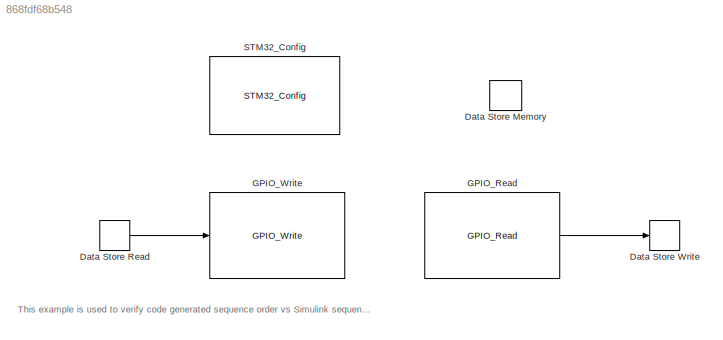
MODEL slx_868fdf68b548
KIND model
CONFIG AbsTol = auto
CONFIG EnableMultiTasking = on
CONFIG FixedStep = 0.01
CONFIG MaxStep = auto
CONFIG MinStep = auto
CONFIG RelTol = 1e-3
CONFIG SampleTimeConstraint = Unconstrained
CONFIG Solver = FixedStepDiscrete
CONFIG SolverName = FixedStepDiscrete
CONFIG StartTime = 0.0
CONFIG StopTime = 10.0
BLOCK [DataStoreMemory] Data Store Memory
  AttributesFormatString = Priority=%<Priority>
  OutDataTypeStr = boolean
  ReadBeforeWriteMsg = warning
  ShowAdditionalParam = off
  SignalType = real
  WriteAfterReadMsg = warning
  WriteAfterWriteMsg = warning
BLOCK [DataStoreRead] Data Store Read
  Ports = [0, 1]
BLOCK [DataStoreWrite] Data Store Write
  Ports = [1]
BLOCK [Reference] GPIO_Read  REF=GPIO_Lib/GPIO_Read
  AttributesFormatString = Priority=%<Priority>
  Ports = [0, 1]
  Priority = 2
  SourceBlock = GPIO_Lib/GPIO_Read
  SourceProductName = Target Support Package - STM32 Adapter
  SourceType = GPIO_Read
BLOCK [Reference] GPIO_Write  REF=GPIO_Lib/GPIO_Write
  AttributesFormatString = Priority=%<Priority>
  Ports = [1]
  Priority = 1
  SourceBlock = GPIO_Lib/GPIO_Write
  SourceProductName = Target Support Package - STM32 Adapter
  SourceType = GPIO_Write
BLOCK [Reference] STM32_Config  REF=STM32_Config_Lib/STM32_Config
  AttributesFormatString = Priority=%<Priority>
  Ports = []
  Priority = 0
  SourceBlock = STM32_Config_Lib/STM32_Config
  SourceProductName = Target Support Package - STM32 Adapter
  SourceType = STM32_Config
ANNOTATION (root): This example is used to verify code generated sequence order vs Simulink sequence order.
LINE Data Store Read:1 -> GPIO_Write:1
LINE GPIO_Read:1 -> Data Store Write:1
